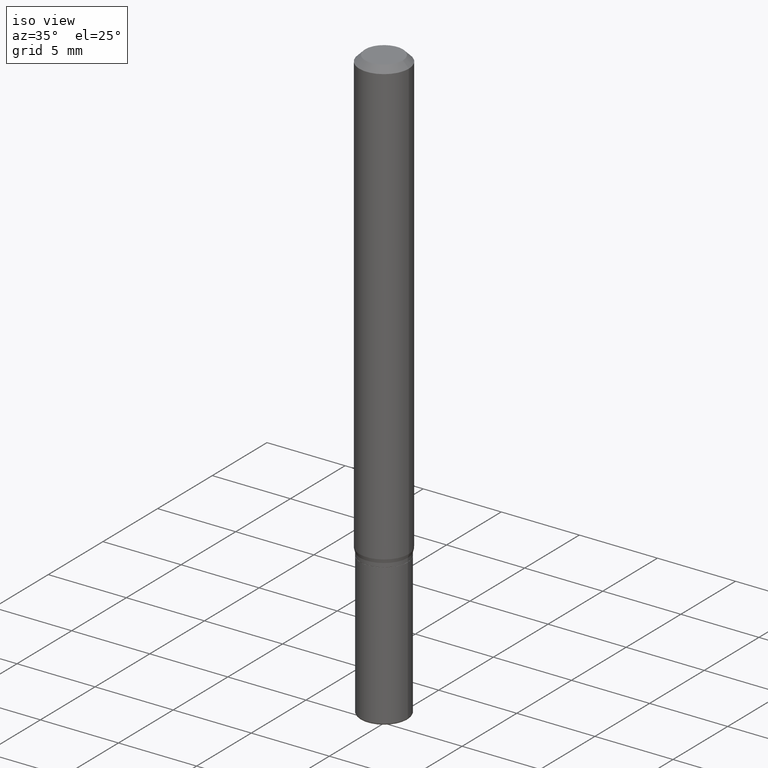
[diagram: clean part render]
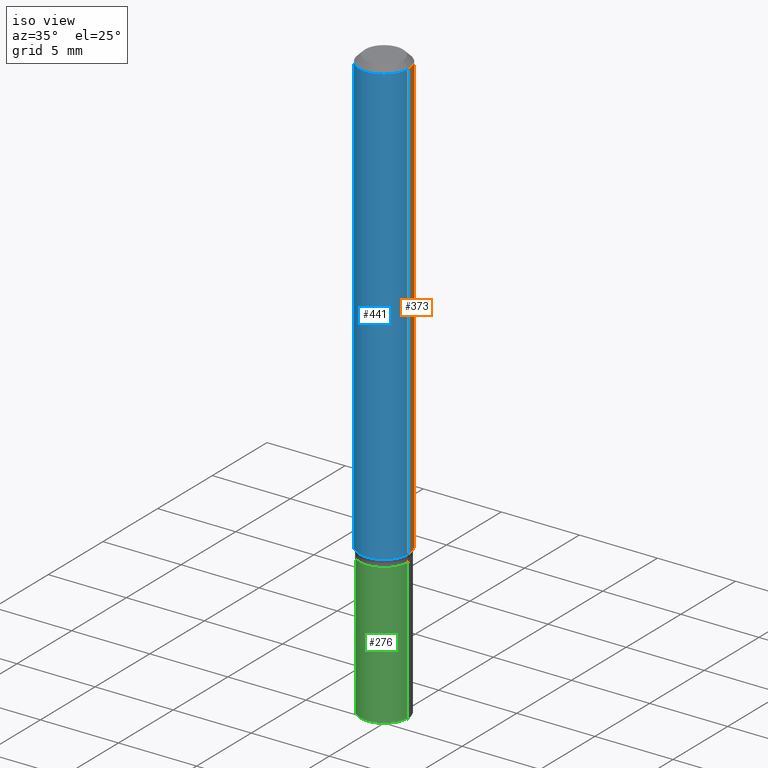
[diagram: same view with three faces highlighted in distinct colors, each labeled with its STEP entity id]
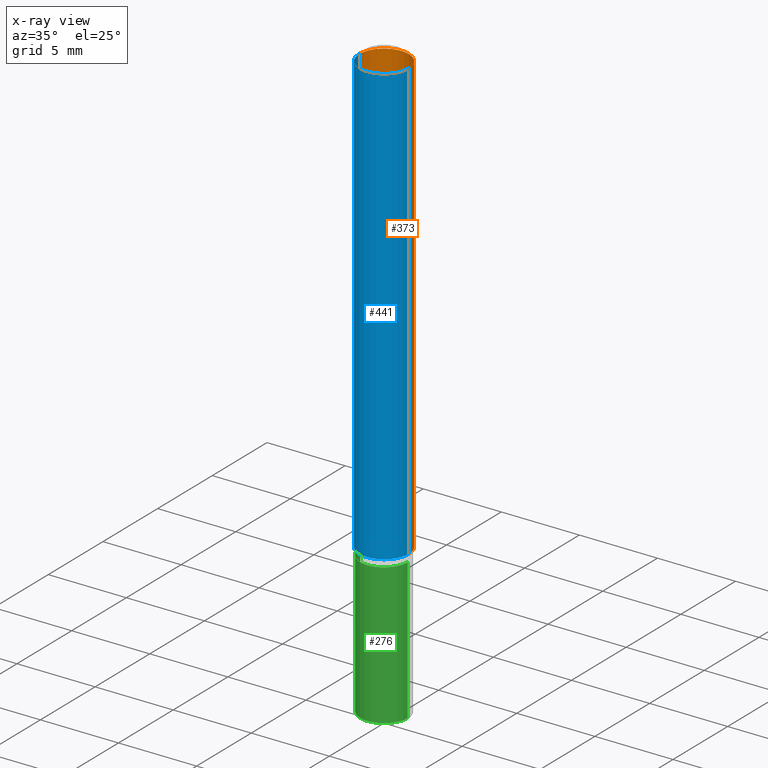
[diagram: x-ray of the same camera — body ghosted, the three highlighted faces saturated]
A machine part, iso view with three faces highlighted in distinct colors.
The next image is the same camera in x-ray (body ghosted, the three faces saturated) — at least one of them is partly hidden behind the body in this view.
Their STEP definitions:

[orange] entity #373 — the highlighted cylindrical surface (edge-blend (fillet) strip) has radius 1.5875 mm, axis along (-0, 0, 1).
#11 = DIRECTION ( 'NONE',  ( -2.445468806185136597E-29, 3.491481338843145583E-15, 1.000000000000000000 ) ) ;
#13 = CARTESIAN_POINT ( 'NONE',  ( -0.06250000000000000000, -3.468708738667091453E-15, -1.120669872981078452 ) ) ;
#19 = VERTEX_POINT ( 'NONE', #188 ) ;
#24 = CIRCLE ( 'NONE', #308, 0.06250000000000000000 ) ;
#42 = DIRECTION ( 'NONE',  ( 1.000000000000000000, -6.982962677686266711E-15, 4.876176775795935793E-29 ) ) ;
#51 = DIRECTION ( 'NONE',  ( 1.000000000000000000, -6.982962677686266711E-15, 0.000000000000000000 ) ) ;
#68 = VECTOR ( 'NONE', #326, 39.37007874015748143 ) ;
#91 = CARTESIAN_POINT ( 'NONE',  ( -0.06250000000000000000, -1.538495874449837169E-15, -0.01499999999999970281 ) ) ;
#100 = VERTEX_POINT ( 'NONE', #13 ) ;
#109 = DIRECTION ( 'NONE',  ( -2.445468806185136597E-29, 3.491481338843145583E-15, 1.000000000000000000 ) ) ;
#130 = ORIENTED_EDGE ( 'NONE', *, *, #366, .F. ) ;
#159 = DIRECTION ( 'NONE',  ( 1.000000000000000000, -6.982962677686262766E-15, 0.000000000000000000 ) ) ;
#188 = CARTESIAN_POINT ( 'NONE',  ( 0.06250000000000000000, -4.349233115872545739E-15, -1.120669872981078452 ) ) ;
#190 = VERTEX_POINT ( 'NONE', #191 ) ;
#191 = CARTESIAN_POINT ( 'NONE',  ( 0.06250000000000000000, -4.888073874380378612E-16, -0.01499999999999970281 ) ) ;
#210 = FACE_OUTER_BOUND ( 'NONE', #422, .T. ) ;
#215 = DIRECTION ( 'NONE',  ( -2.445468806185136597E-29, 3.491481338843145583E-15, 1.000000000000000000 ) ) ;
#237 = EDGE_CURVE ( 'NONE', #19, #100, #482, .T. ) ;
#255 = LINE ( 'NONE', #483, #68 ) ;
#283 = CARTESIAN_POINT ( 'NONE',  ( 0.06250000000000000000, -4.364351673553916694E-16, 3.047610484872459871E-30 ) ) ;
#286 = CARTESIAN_POINT ( 'NONE',  ( 0.000000000000000000, 0.000000000000000000, 0.000000000000000000 ) ) ;
#293 = AXIS2_PLACEMENT_3D ( 'NONE', #286, #215, #42 ) ;
#308 = AXIS2_PLACEMENT_3D ( 'NONE', #415, #11, #51 ) ;
#313 = EDGE_CURVE ( 'NONE', #100, #454, #255, .T. ) ;
#326 = DIRECTION ( 'NONE',  ( -2.445468806185136877E-29, 3.491481338843145188E-15, 1.000000000000000000 ) ) ;
#355 = VECTOR ( 'NONE', #489, 39.37007874015748143 ) ;
#366 = EDGE_CURVE ( 'NONE', #19, #190, #405, .T. ) ;
#373 = ADVANCED_FACE ( 'NONE', ( #210 ), #444, .T. ) ;
#383 = ORIENTED_EDGE ( 'NONE', *, *, #237, .T. ) ;
#405 = LINE ( 'NONE', #283, #355 ) ;
#415 = CARTESIAN_POINT ( 'NONE',  ( 3.668203209277632395E-31, -5.237222008264614861E-17, -0.01499999999999970281 ) ) ;
#421 = AXIS2_PLACEMENT_3D ( 'NONE', #509, #109, #159 ) ;
#422 = EDGE_LOOP ( 'NONE', ( #383, #447, #442, #130 ) ) ;
#442 = ORIENTED_EDGE ( 'NONE', *, *, #506, .F. ) ;
#444 = CYLINDRICAL_SURFACE ( 'NONE', #293, 0.06250000000000000000 ) ;
#447 = ORIENTED_EDGE ( 'NONE', *, *, #313, .T. ) ;
#454 = VERTEX_POINT ( 'NONE', #91 ) ;
#482 = CIRCLE ( 'NONE', #421, 0.06250000000000000000 ) ;
#483 = CARTESIAN_POINT ( 'NONE',  ( -0.06250000000000000000, 4.440892098500626162E-16, -3.074334431409316114E-30 ) ) ;
#489 = DIRECTION ( 'NONE',  ( -2.445468806185136877E-29, 3.491481338843145188E-15, 1.000000000000000000 ) ) ;
#506 = EDGE_CURVE ( 'NONE', #190, #454, #24, .T. ) ;
#509 = CARTESIAN_POINT ( 'NONE',  ( 2.740563216406686834E-29, -3.912797948517154069E-15, -1.120669872981078452 ) ) ;

[blue] entity #441 — the highlighted cylindrical surface (edge-blend (fillet) strip) has radius 1.5875 mm, axis along (-0, 0, 1).
#13 = CARTESIAN_POINT ( 'NONE',  ( -0.06250000000000000000, -3.468708738667091453E-15, -1.120669872981078452 ) ) ;
#19 = VERTEX_POINT ( 'NONE', #188 ) ;
#37 = CARTESIAN_POINT ( 'NONE',  ( 3.668203209277632395E-31, -5.237222008264614861E-17, -0.01499999999999970281 ) ) ;
#44 = EDGE_CURVE ( 'NONE', #100, #19, #86, .T. ) ;
#47 = ORIENTED_EDGE ( 'NONE', *, *, #313, .F. ) ;
#55 = ORIENTED_EDGE ( 'NONE', *, *, #366, .T. ) ;
#68 = VECTOR ( 'NONE', #326, 39.37007874015748143 ) ;
#86 = CIRCLE ( 'NONE', #380, 0.06250000000000000000 ) ;
#91 = CARTESIAN_POINT ( 'NONE',  ( -0.06250000000000000000, -1.538495874449837169E-15, -0.01499999999999970281 ) ) ;
#94 = DIRECTION ( 'NONE',  ( -2.445468806185136597E-29, 3.491481338843145583E-15, 1.000000000000000000 ) ) ;
#95 = CARTESIAN_POINT ( 'NONE',  ( 2.740563216406686834E-29, -3.912797948517154069E-15, -1.120669872981078452 ) ) ;
#100 = VERTEX_POINT ( 'NONE', #13 ) ;
#101 = AXIS2_PLACEMENT_3D ( 'NONE', #37, #485, #361 ) ;
#120 = ORIENTED_EDGE ( 'NONE', *, *, #44, .T. ) ;
#143 = ORIENTED_EDGE ( 'NONE', *, *, #387, .F. ) ;
#145 = DIRECTION ( 'NONE',  ( 1.000000000000000000, -6.982962677686266711E-15, 4.876176775795935793E-29 ) ) ;
#175 = DIRECTION ( 'NONE',  ( -2.445468806185136597E-29, 3.491481338843145583E-15, 1.000000000000000000 ) ) ;
#188 = CARTESIAN_POINT ( 'NONE',  ( 0.06250000000000000000, -4.349233115872545739E-15, -1.120669872981078452 ) ) ;
#190 = VERTEX_POINT ( 'NONE', #191 ) ;
#191 = CARTESIAN_POINT ( 'NONE',  ( 0.06250000000000000000, -4.888073874380378612E-16, -0.01499999999999970281 ) ) ;
#220 = AXIS2_PLACEMENT_3D ( 'NONE', #420, #94, #145 ) ;
#226 = CYLINDRICAL_SURFACE ( 'NONE', #220, 0.06250000000000000000 ) ;
#255 = LINE ( 'NONE', #483, #68 ) ;
#283 = CARTESIAN_POINT ( 'NONE',  ( 0.06250000000000000000, -4.364351673553916694E-16, 3.047610484872459871E-30 ) ) ;
#305 = CIRCLE ( 'NONE', #101, 0.06250000000000000000 ) ;
#313 = EDGE_CURVE ( 'NONE', #100, #454, #255, .T. ) ;
#326 = DIRECTION ( 'NONE',  ( -2.445468806185136877E-29, 3.491481338843145188E-15, 1.000000000000000000 ) ) ;
#355 = VECTOR ( 'NONE', #489, 39.37007874015748143 ) ;
#361 = DIRECTION ( 'NONE',  ( 1.000000000000000000, -6.982962677686266711E-15, 0.000000000000000000 ) ) ;
#366 = EDGE_CURVE ( 'NONE', #19, #190, #405, .T. ) ;
#379 = FACE_OUTER_BOUND ( 'NONE', #476, .T. ) ;
#380 = AXIS2_PLACEMENT_3D ( 'NONE', #95, #175, #503 ) ;
#387 = EDGE_CURVE ( 'NONE', #454, #190, #305, .T. ) ;
#405 = LINE ( 'NONE', #283, #355 ) ;
#420 = CARTESIAN_POINT ( 'NONE',  ( 0.000000000000000000, 0.000000000000000000, 0.000000000000000000 ) ) ;
#441 = ADVANCED_FACE ( 'NONE', ( #379 ), #226, .T. ) ;
#454 = VERTEX_POINT ( 'NONE', #91 ) ;
#476 = EDGE_LOOP ( 'NONE', ( #47, #120, #55, #143 ) ) ;
#483 = CARTESIAN_POINT ( 'NONE',  ( -0.06250000000000000000, 4.440892098500626162E-16, -3.074334431409316114E-30 ) ) ;
#485 = DIRECTION ( 'NONE',  ( -2.445468806185136597E-29, 3.491481338843145583E-15, 1.000000000000000000 ) ) ;
#489 = DIRECTION ( 'NONE',  ( -2.445468806185136877E-29, 3.491481338843145188E-15, 1.000000000000000000 ) ) ;
#503 = DIRECTION ( 'NONE',  ( 1.000000000000000000, -6.982962677686262766E-15, 0.000000000000000000 ) ) ;

[green] entity #276 — the highlighted cylindrical surface (edge-blend (fillet) strip) has radius 1.524 mm, axis along (-0, 0, 1).
#5 = DIRECTION ( 'NONE',  ( -2.445468806185136597E-29, 3.491481338843145583E-15, 1.000000000000000000 ) ) ;
#12 = EDGE_CURVE ( 'NONE', #110, #432, #456, .T. ) ;
#21 = CARTESIAN_POINT ( 'NONE',  ( -0.06000000000000009492, 4.263256414560607860E-16, -2.951361054152947967E-30 ) ) ;
#32 = VERTEX_POINT ( 'NONE', #416 ) ;
#40 = DIRECTION ( 'NONE',  ( 1.000000000000000000, -6.982962677686268288E-15, 0.000000000000000000 ) ) ;
#41 = CIRCLE ( 'NONE', #112, 0.05999999999999999778 ) ;
#83 = LINE ( 'NONE', #367, #504 ) ;
#92 = ORIENTED_EDGE ( 'NONE', *, *, #412, .T. ) ;
#110 = VERTEX_POINT ( 'NONE', #140 ) ;
#112 = AXIS2_PLACEMENT_3D ( 'NONE', #327, #368, #40 ) ;
#131 = DIRECTION ( 'NONE',  ( -2.445468806185136877E-29, 3.491481338843145188E-15, 1.000000000000000000 ) ) ;
#140 = CARTESIAN_POINT ( 'NONE',  ( -0.06000000000000017125, -4.173701022469782852E-15, -1.495000000000000107 ) ) ;
#161 = CARTESIAN_POINT ( 'NONE',  ( 0.000000000000000000, 0.000000000000000000, 0.000000000000000000 ) ) ;
#185 = ORIENTED_EDGE ( 'NONE', *, *, #511, .T. ) ;
#186 = VERTEX_POINT ( 'NONE', #510 ) ;
#213 = FACE_OUTER_BOUND ( 'NONE', #359, .T. ) ;
#253 = DIRECTION ( 'NONE',  ( 1.000000000000000000, -6.982962677686265922E-15, 4.876176775795935793E-29 ) ) ;
#262 = ORIENTED_EDGE ( 'NONE', *, *, #348, .F. ) ;
#276 = ADVANCED_FACE ( 'NONE', ( #213 ), #402, .T. ) ;
#289 = CARTESIAN_POINT ( 'NONE',  ( -0.05999999999999999778, -4.173701022469784429E-15, -1.140000000000000124 ) ) ;
#325 = AXIS2_PLACEMENT_3D ( 'NONE', #161, #5, #253 ) ;
#327 = CARTESIAN_POINT ( 'NONE',  ( 2.787834439051055989E-29, -3.980288726281186698E-15, -1.140000000000000124 ) ) ;
#341 = VECTOR ( 'NONE', #378, 39.37007874015748143 ) ;
#348 = EDGE_CURVE ( 'NONE', #432, #186, #41, .T. ) ;
#359 = EDGE_LOOP ( 'NONE', ( #518, #185, #92, #262 ) ) ;
#363 = CIRCLE ( 'NONE', #479, 0.06000000000000017819 ) ;
#367 = CARTESIAN_POINT ( 'NONE',  ( 0.06000000000000009492, -4.189777606611766337E-16, 2.925706065477565960E-30 ) ) ;
#368 = DIRECTION ( 'NONE',  ( -2.445468806185136597E-29, 3.491481338843145583E-15, 1.000000000000000000 ) ) ;
#375 = DIRECTION ( 'NONE',  ( -2.445468806185136597E-29, 3.491481338843145583E-15, 1.000000000000000000 ) ) ;
#378 = DIRECTION ( 'NONE',  ( -2.445468806185136877E-29, 3.491481338843145188E-15, 1.000000000000000000 ) ) ;
#402 = CYLINDRICAL_SURFACE ( 'NONE', #325, 0.06000000000000009492 ) ;
#412 = EDGE_CURVE ( 'NONE', #32, #186, #83, .T. ) ;
#416 = CARTESIAN_POINT ( 'NONE',  ( 0.06000000000000017819, -5.638742362231680564E-15, -1.495000000000000107 ) ) ;
#432 = VERTEX_POINT ( 'NONE', #289 ) ;
#456 = LINE ( 'NONE', #21, #341 ) ;
#479 = AXIS2_PLACEMENT_3D ( 'NONE', #499, #375, #490 ) ;
#490 = DIRECTION ( 'NONE',  ( 1.000000000000000000, -6.982962677686263555E-15, 0.000000000000000000 ) ) ;
#499 = CARTESIAN_POINT ( 'NONE',  ( 3.655975865246779122E-29, -5.219764601570503141E-15, -1.495000000000000107 ) ) ;
#504 = VECTOR ( 'NONE', #131, 39.37007874015748143 ) ;
#510 = CARTESIAN_POINT ( 'NONE',  ( 0.05999999999999999778, -4.399266486942362543E-15, -1.140000000000000124 ) ) ;
#511 = EDGE_CURVE ( 'NONE', #110, #32, #363, .T. ) ;
#518 = ORIENTED_EDGE ( 'NONE', *, *, #12, .F. ) ;